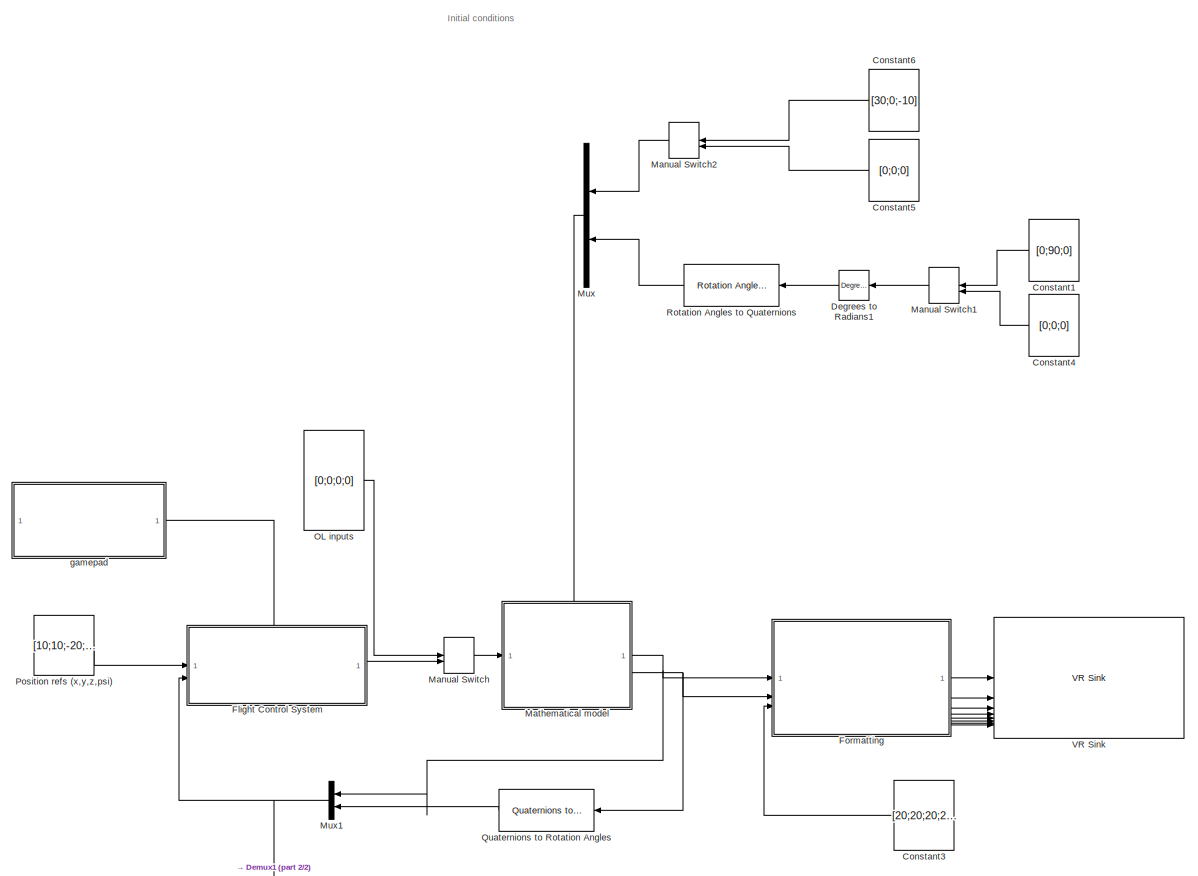
[diagram: root canvas - part 1/2, full width, middle band]
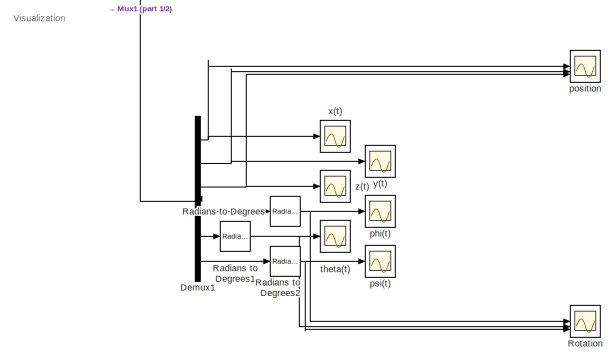
[diagram: root canvas - part 2/2, bottom center region]
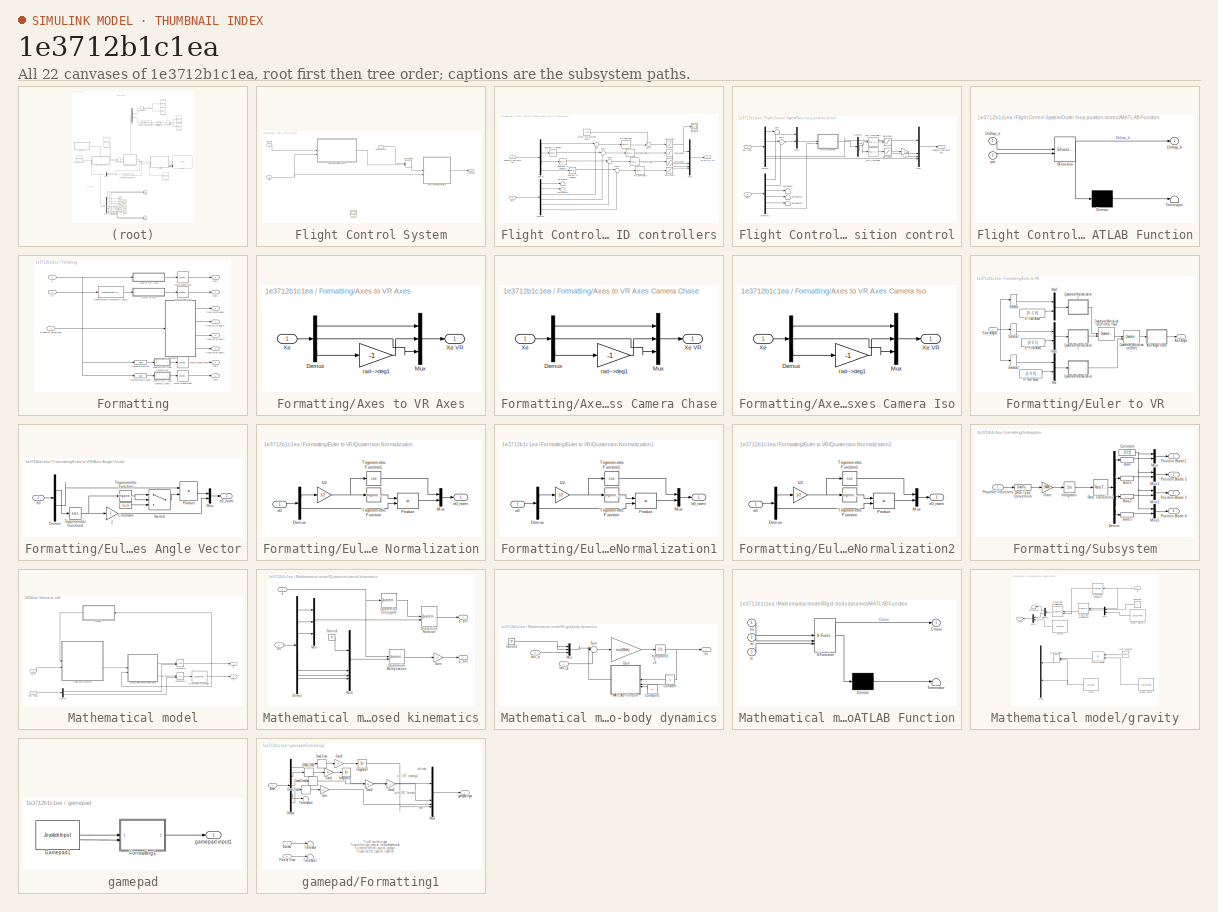
[diagram: thumbnail index - all 22 canvases of the model, root first then tree order]
MODEL slx_1e3712b1c1ea
KIND model
CONFIG AbsTol = auto
CONFIG EnableMultiTasking = on
CONFIG FixedStep = 0.005
CONFIG MaxStep = auto
CONFIG MinStep = auto
CONFIG RelTol = 1e-3
CONFIG SampleTimeConstraint = Unconstrained
CONFIG SolverName = ode3
CONFIG StartTime = 0
CONFIG StopTime = inf
BLOCK [Constant] Constant1
  NameLocation = top
  Value = [0;90;0]
  VectorParams1D = off
BLOCK [Constant] Constant3
  Value = [20;20;20;20]
  VectorParams1D = off
BLOCK [Constant] Constant4
  NameLocation = top
  Value = [0;0;0]
  VectorParams1D = off
BLOCK [Constant] Constant5
  Value = [0;0;0]
  VectorParams1D = off
BLOCK [Constant] Constant6
  Value = [30;0;-10]
  VectorParams1D = off
BLOCK [Reference] Degrees to Radians1  REF=simulink_extras/Transformations/Degrees to
Radians
  NameLocation = top
  SourceBlock = simulink_extras/Transformations/Degrees to\nRadians
  SourceType = DegreesToRadians
BLOCK [Demux] Demux1
  Outputs = 6
BLOCK [SubSystem] Flight Control System
  PortSchema = {"entries":[{"content":{"sides":[{"content":{"connectorIds":["In1","In2"]},"type":"ConnectorPlacement.EquallySpacedRectSide","uuid":"8ffec179-99fb-4b4c-a09d-a73fa0154dea"},{"content":{"connectorIds":["Out1"],"side":"RIGHT"},"type":"ConnectorPlacement.EquallySpacedRectSide","uuid":"b9ff487d-1da1-449a-81c9-f1838b0d3727"},{"content":{"connectorIds":["In3"],"side":"TOP"},"type":"ConnectorPlacement.Equ...<+251ch>
BLOCK [Outport] Flight Control System/Fz,mx,my,mz
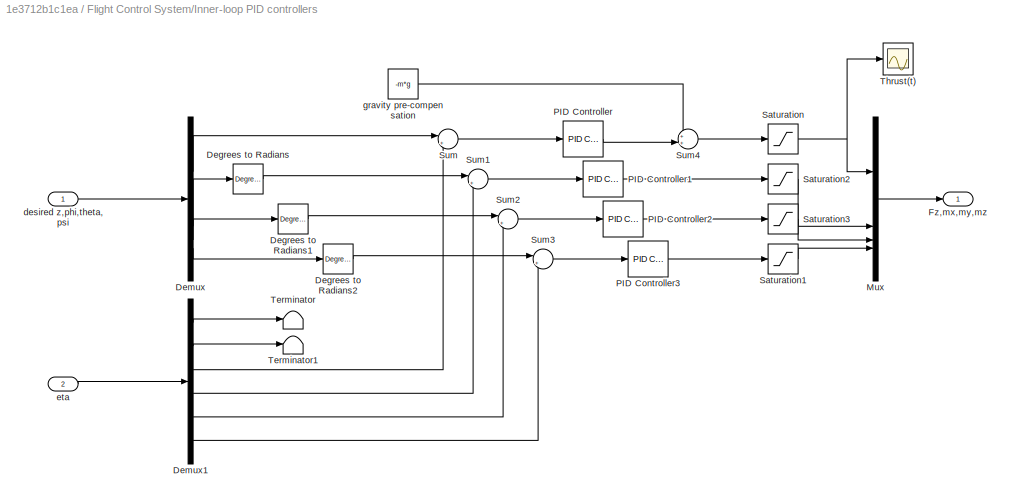
BLOCK [SubSystem] Flight Control System/Inner-loop PID controllers
BLOCK [Reference] Flight Control System/Inner-loop PID controllers/Degrees to Radians  REF=simulink_extras/Transformations/Degrees to
Radians
  SourceBlock = simulink_extras/Transformations/Degrees to\nRadians
  SourceType = DegreesToRadians
BLOCK [Reference] Flight Control System/Inner-loop PID controllers/Degrees to Radians1  REF=simulink_extras/Transformations/Degrees to
Radians
  SourceBlock = simulink_extras/Transformations/Degrees to\nRadians
  SourceType = DegreesToRadians
BLOCK [Reference] Flight Control System/Inner-loop PID controllers/Degrees to Radians2  REF=simulink_extras/Transformations/Degrees to
Radians
  SourceBlock = simulink_extras/Transformations/Degrees to\nRadians
  SourceType = DegreesToRadians
BLOCK [Demux] Flight Control System/Inner-loop PID controllers/Demux
BLOCK [Demux] Flight Control System/Inner-loop PID controllers/Demux1
  Outputs = 6
BLOCK [Outport] Flight Control System/Inner-loop PID controllers/Fz,mx,my,mz
BLOCK [Mux] Flight Control System/Inner-loop PID controllers/Mux
  DisplayOption = bar
BLOCK [Reference] Flight Control System/Inner-loop PID controllers/PID Controller  REF=slpidlib/PID Controller
  LibrarySourceBlock = simulink/Continuous/PID Controller
  SourceBlock = slpidlib/PID Controller
  SourceType = PID 1dof
BLOCK [Reference] Flight Control System/Inner-loop PID controllers/PID Controller1  REF=slpidlib/PID Controller
  LibrarySourceBlock = simulink/Continuous/PID Controller
  SourceBlock = slpidlib/PID Controller
  SourceType = PID 1dof
BLOCK [Reference] Flight Control System/Inner-loop PID controllers/PID Controller2  REF=slpidlib/PID Controller
  LibrarySourceBlock = simulink/Continuous/PID Controller
  SourceBlock = slpidlib/PID Controller
  SourceType = PID 1dof
BLOCK [Reference] Flight Control System/Inner-loop PID controllers/PID Controller3  REF=slpidlib/PID Controller
  LibrarySourceBlock = simulink/Continuous/PID Controller
  SourceBlock = slpidlib/PID Controller
  SourceType = PID 1dof
BLOCK [Saturate] Flight Control System/Inner-loop PID controllers/Saturation
  LowerLimit = -100
  UpperLimit = 100
BLOCK [Saturate] Flight Control System/Inner-loop PID controllers/Saturation1
  LowerLimit = -100
  UpperLimit = 100
BLOCK [Saturate] Flight Control System/Inner-loop PID controllers/Saturation2
  LowerLimit = -100
  UpperLimit = 100
BLOCK [Saturate] Flight Control System/Inner-loop PID controllers/Saturation3
  LowerLimit = -100
  UpperLimit = 100
BLOCK [Sum] Flight Control System/Inner-loop PID controllers/Sum
  Inputs = |+-
BLOCK [Sum] Flight Control System/Inner-loop PID controllers/Sum1
  Inputs = |+-
BLOCK [Sum] Flight Control System/Inner-loop PID controllers/Sum2
  Inputs = |+-
BLOCK [Sum] Flight Control System/Inner-loop PID controllers/Sum3
  Inputs = |+-
BLOCK [Sum] Flight Control System/Inner-loop PID controllers/Sum4
  Inputs = ++|
BLOCK [Terminator] Flight Control System/Inner-loop PID controllers/Terminator
BLOCK [Terminator] Flight Control System/Inner-loop PID controllers/Terminator1
BLOCK [Scope] Flight Control System/Inner-loop PID controllers/Thrust(t)
  Floating = off
  NumInputPorts = 1
  ScopeSpecificationString = Simulink.scopes.TimeScopeBlockCfg('CurrentConfiguration', extmgr.ConfigurationSet(extmgr.Configuration('Core','General UI',true),extmgr.Configuration('Core','Source UI',true),extmgr.Configuration('Sources','WiredSimulink',true,'DataLoggingVariableName','ScopeData6'),extmgr.Configuration('Visuals','Time Domain',true,'SerializedDisplays',{struct('MinYLimReal','-112.66583','MaxYLimReal','13.99248','Y...<+1456ch>
BLOCK [Inport] Flight Control System/Inner-loop PID controllers/desired z,phi,theta,psi
BLOCK [Inport] Flight Control System/Inner-loop PID controllers/eta
  Port = 2
BLOCK [Constant] Flight Control System/Inner-loop PID controllers/gravity pre-compensation
  Value = -m*g
BLOCK [ManualSwitch] Flight Control System/Manual Switch
BLOCK [SubSystem] Flight Control System/Outer loop position control
BLOCK [Demux] Flight Control System/Outer loop position control/Demux
BLOCK [Demux] Flight Control System/Outer loop position control/Demux1
  Outputs = 6
BLOCK [Demux] Flight Control System/Outer loop position control/Demux2
  Outputs = 2
BLOCK [Gain] Flight Control System/Outer loop position control/Gain
  Gain = -1
BLOCK [SubSystem] Flight Control System/Outer loop position control/MATLAB Function
  ErrorFcn = Stateflow.Translate.translate
  PermitHierarchicalResolution = ExplicitOnly
  SFBlockType = MATLAB Function
  TreatAsAtomicUnit = on
BLOCK [Demux] Flight Control System/Outer loop position control/MATLAB Function/ Demux 
  Outputs = 1
BLOCK [S-Function] Flight Control System/Outer loop position control/MATLAB Function/ SFunction 
  EnableBusSupport = on
  FunctionName = sf_sfun
  PortCounts = [2 2]
  SFcnIsStateOwnerBlock = off
  SFunctionDeploymentMode = off
  Tag = Stateflow S-Function 1
BLOCK [Terminator] Flight Control System/Outer loop position control/MATLAB Function/ Terminator 
BLOCK [Outport] Flight Control System/Outer loop position control/MATLAB Function/Deltap_b
BLOCK [Inport] Flight Control System/Outer loop position control/MATLAB Function/Deltap_e
BLOCK [Inport] Flight Control System/Outer loop position control/MATLAB Function/psi
  Port = 2
BLOCK [Mux] Flight Control System/Outer loop position control/Mux
  DisplayOption = bar
BLOCK [Mux] Flight Control System/Outer loop position control/Mux1
  DisplayOption = bar
  Inputs = 2
BLOCK [Reference] Flight Control System/Outer loop position control/PID Controller  REF=slpidlib/PID Controller
  LibrarySourceBlock = simulink/Continuous/PID Controller
  SourceBlock = slpidlib/PID Controller
  SourceType = PID 1dof
BLOCK [Reference] Flight Control System/Outer loop position control/PID Controller2  REF=slpidlib/PID Controller
  LibrarySourceBlock = simulink/Continuous/PID Controller
  SourceBlock = slpidlib/PID Controller
  SourceType = PID 1dof
BLOCK [Inport] Flight Control System/Outer loop position control/Pos. refs
BLOCK [Saturate] Flight Control System/Outer loop position control/Saturation
  LowerLimit = -5
  UpperLimit = 5
BLOCK [Saturate] Flight Control System/Outer loop position control/Saturation1
  LowerLimit = -5
  UpperLimit = 5
BLOCK [Sum] Flight Control System/Outer loop position control/Sum
  Inputs = |+-
BLOCK [Sum] Flight Control System/Outer loop position control/Sum1
  Inputs = |+-
BLOCK [Terminator] Flight Control System/Outer loop position control/Terminator
BLOCK [Terminator] Flight Control System/Outer loop position control/Terminator1
BLOCK [Terminator] Flight Control System/Outer loop position control/Terminator2
BLOCK [Outport] Flight Control System/Outer loop position control/desired z,phi,theta,psi
BLOCK [Inport] Flight Control System/Outer loop position control/eta
  Port = 2
BLOCK [Inport] Flight Control System/Pos. refs
BLOCK [Inport] Flight Control System/eta
  Port = 2
BLOCK [Inport] Flight Control System/gamepad input
  Port = 3
BLOCK [Scope] Flight Control System/m_y(t)
  Floating = off
  NumInputPorts = 1
  ScopeSpecificationString = Simulink.scopes.TimeScopeBlockCfg('CurrentConfiguration', extmgr.ConfigurationSet(extmgr.Configuration('Core','General UI',true),extmgr.Configuration('Core','Source UI',true),extmgr.Configuration('Sources','WiredSimulink',true,'DataLoggingVariableName','ScopeData3'),extmgr.Configuration('Visuals','Time Domain',true,'SerializedDisplays',{struct('MinYLimReal','-1.00000','MaxYLimReal','1.00000','YLab...<+1433ch>
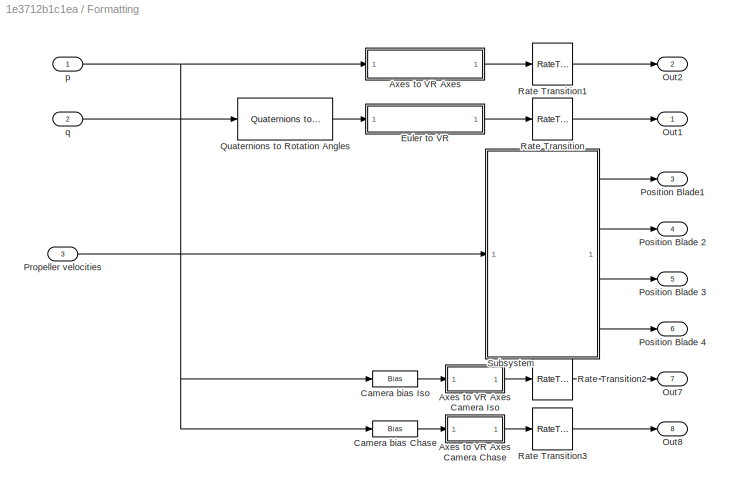
BLOCK [SubSystem] Formatting
BLOCK [SubSystem] Formatting/Axes to VR Axes
BLOCK [SubSystem] Formatting/Axes to VR Axes Camera Chase
BLOCK [Demux] Formatting/Axes to VR Axes Camera Chase/Demux
  DisplayOption = none
  Outputs = 3
BLOCK [Mux] Formatting/Axes to VR Axes Camera Chase/Mux
  DisplayOption = bar
  Inputs = 3
BLOCK [Inport] Formatting/Axes to VR Axes Camera Chase/Xe
BLOCK [Outport] Formatting/Axes to VR Axes Camera Chase/Xe VR
  VectorParamsAs1DForOutWhenUnconnected = off
BLOCK [Gain] Formatting/Axes to VR Axes Camera Chase/rad-->deg1
  Gain = -1
  NameLocation = top
  OutDataTypeStr = Inherit: Same as input
  ParamDataTypeStr = Inherit: Same as input
  SaturateOnIntegerOverflow = on
BLOCK [SubSystem] Formatting/Axes to VR Axes Camera Iso
BLOCK [Demux] Formatting/Axes to VR Axes Camera Iso/Demux
  DisplayOption = none
  Outputs = 3
BLOCK [Mux] Formatting/Axes to VR Axes Camera Iso/Mux
  DisplayOption = bar
  Inputs = 3
BLOCK [Inport] Formatting/Axes to VR Axes Camera Iso/Xe
BLOCK [Outport] Formatting/Axes to VR Axes Camera Iso/Xe VR
  VectorParamsAs1DForOutWhenUnconnected = off
BLOCK [Gain] Formatting/Axes to VR Axes Camera Iso/rad-->deg1
  Gain = -1
  NameLocation = top
  OutDataTypeStr = Inherit: Same as input
  ParamDataTypeStr = Inherit: Same as input
  SaturateOnIntegerOverflow = on
BLOCK [Demux] Formatting/Axes to VR Axes/Demux
  DisplayOption = none
  Outputs = 3
BLOCK [Mux] Formatting/Axes to VR Axes/Mux
  DisplayOption = bar
  Inputs = 3
BLOCK [Inport] Formatting/Axes to VR Axes/Xe
BLOCK [Outport] Formatting/Axes to VR Axes/Xe VR
  VectorParamsAs1DForOutWhenUnconnected = off
BLOCK [Gain] Formatting/Axes to VR Axes/rad-->deg1
  Gain = -1
  NameLocation = top
  OutDataTypeStr = Inherit: Same as input
  ParamDataTypeStr = Inherit: Same as input
  SaturateOnIntegerOverflow = on
BLOCK [Bias] Formatting/Camera bias Chase
  Bias = [-4 0 -.9558]'
  SaturateOnIntegerOverflow = off
BLOCK [Bias] Formatting/Camera bias Iso
  Bias = [0.9009 .99 -.6247]'
  SaturateOnIntegerOverflow = off
BLOCK [SubSystem] Formatting/Euler to VR
BLOCK [Outport] Formatting/Euler to VR/Axis Angle
  VectorParamsAs1DForOutWhenUnconnected = off
BLOCK [SubSystem] Formatting/Euler to VR/Axis Angle Vector
BLOCK [Gain] Formatting/Euler to VR/Axis Angle Vector/2
  Gain = 2
  OutDataTypeStr = Inherit: Same as input
  ParamDataTypeStr = Inherit: Same as input
  SaturateOnIntegerOverflow = on
BLOCK [Constant] Formatting/Euler to VR/Axis Angle Vector/Constant
  Value = 1e-6
BLOCK [Demux] Formatting/Euler to VR/Axis Angle Vector/Demux
  DisplayOption = none
  Outputs = [1 3 ]
BLOCK [Mux] Formatting/Euler to VR/Axis Angle Vector/Mux
  DisplayOption = bar
  Inputs = 2
BLOCK [Product] Formatting/Euler to VR/Axis Angle Vector/Product
  InputSameDT = on
  Inputs = */
  OutDataTypeStr = Inherit: Same as first input
  SaturateOnIntegerOverflow = on
BLOCK [Switch] Formatting/Euler to VR/Axis Angle Vector/Switch
  Criteria = u2 ~= 0
  InputSameDT = off
  SaturateOnIntegerOverflow = off
BLOCK [Trigonometry] Formatting/Euler to VR/Axis Angle Vector/Trigonometric Function
BLOCK [Trigonometry] Formatting/Euler to VR/Axis Angle Vector/Trigonometric Function2
  Operator = acos
BLOCK [Inport] Formatting/Euler to VR/Axis Angle Vector/e0
BLOCK [Outport] Formatting/Euler to VR/Axis Angle Vector/e0_norm
  VectorParamsAs1DForOutWhenUnconnected = off
BLOCK [Inport] Formatting/Euler to VR/Euler Angles
BLOCK [Mux] Formatting/Euler to VR/Mux
  DisplayOption = bar
  Inputs = 2
BLOCK [Mux] Formatting/Euler to VR/Mux1
  DisplayOption = bar
  Inputs = 2
BLOCK [Mux] Formatting/Euler to VR/Mux2
  DisplayOption = bar
  Inputs = 2
BLOCK [Reference] Formatting/Euler to VR/Quaternion Multiplication (Pitch & Yaw)  REF=aerolibutil/Quaternion
Multiplication
  SourceBlock = aerolibutil/Quaternion\nMultiplication
  SourceType = Quaternion Multiplication
BLOCK [Reference] Formatting/Euler to VR/Quaternion Multiplication (Roll)  REF=aerolibutil/Quaternion
Multiplication
  SourceBlock = aerolibutil/Quaternion\nMultiplication
  SourceType = Quaternion Multiplication
BLOCK [SubSystem] Formatting/Euler to VR/Quaternion Normalization
BLOCK [Gain] Formatting/Euler to VR/Quaternion Normalization/1//2
  Gain = 1/2
  OutDataTypeStr = Inherit: Same as input
  ParamDataTypeStr = Inherit: Same as input
  SaturateOnIntegerOverflow = on
BLOCK [Demux] Formatting/Euler to VR/Quaternion Normalization/Demux
  DisplayOption = none
  Outputs = [1 3]
BLOCK [Mux] Formatting/Euler to VR/Quaternion Normalization/Mux
  DisplayOption = bar
  Inputs = 2
BLOCK [Product] Formatting/Euler to VR/Quaternion Normalization/Product
  InputSameDT = on
  OutDataTypeStr = Inherit: Same as first input
  SaturateOnIntegerOverflow = on
BLOCK [Trigonometry] Formatting/Euler to VR/Quaternion Normalization/Trigonometric Function
BLOCK [Trigonometry] Formatting/Euler to VR/Quaternion Normalization/Trigonometric Function1
  Operator = cos
BLOCK [Inport] Formatting/Euler to VR/Quaternion Normalization/e0
BLOCK [Outport] Formatting/Euler to VR/Quaternion Normalization/e0_norm
  VectorParamsAs1DForOutWhenUnconnected = off
BLOCK [SubSystem] Formatting/Euler to VR/Quaternion Normalization1
BLOCK [Gain] Formatting/Euler to VR/Quaternion Normalization1/1//2
  Gain = 1/2
  OutDataTypeStr = Inherit: Same as input
  ParamDataTypeStr = Inherit: Same as input
  SaturateOnIntegerOverflow = on
BLOCK [Demux] Formatting/Euler to VR/Quaternion Normalization1/Demux
  DisplayOption = none
  Outputs = [1 3]
BLOCK [Mux] Formatting/Euler to VR/Quaternion Normalization1/Mux
  DisplayOption = bar
  Inputs = 2
BLOCK [Product] Formatting/Euler to VR/Quaternion Normalization1/Product
  InputSameDT = on
  OutDataTypeStr = Inherit: Same as first input
  SaturateOnIntegerOverflow = on
BLOCK [Trigonometry] Formatting/Euler to VR/Quaternion Normalization1/Trigonometric Function
BLOCK [Trigonometry] Formatting/Euler to VR/Quaternion Normalization1/Trigonometric Function1
  Operator = cos
BLOCK [Inport] Formatting/Euler to VR/Quaternion Normalization1/e0
BLOCK [Outport] Formatting/Euler to VR/Quaternion Normalization1/e0_norm
  VectorParamsAs1DForOutWhenUnconnected = off
BLOCK [SubSystem] Formatting/Euler to VR/Quaternion Normalization2
BLOCK [Gain] Formatting/Euler to VR/Quaternion Normalization2/1//2
  Gain = 1/2
  OutDataTypeStr = Inherit: Same as input
  ParamDataTypeStr = Inherit: Same as input
  SaturateOnIntegerOverflow = on
BLOCK [Demux] Formatting/Euler to VR/Quaternion Normalization2/Demux
  DisplayOption = none
  Outputs = [1 3]
BLOCK [Mux] Formatting/Euler to VR/Quaternion Normalization2/Mux
  DisplayOption = bar
  Inputs = 2
BLOCK [Product] Formatting/Euler to VR/Quaternion Normalization2/Product
  InputSameDT = on
  OutDataTypeStr = Inherit: Same as first input
  SaturateOnIntegerOverflow = on
BLOCK [Trigonometry] Formatting/Euler to VR/Quaternion Normalization2/Trigonometric Function
BLOCK [Trigonometry] Formatting/Euler to VR/Quaternion Normalization2/Trigonometric Function1
  Operator = cos
BLOCK [Inport] Formatting/Euler to VR/Quaternion Normalization2/e0
BLOCK [Outport] Formatting/Euler to VR/Quaternion Normalization2/e0_norm
  VectorParamsAs1DForOutWhenUnconnected = off
BLOCK [Selector] Formatting/Euler to VR/Selector
  IndexOptions = Index vector (dialog)
  Indices = [3]
  InputPortWidth = 3
  OutputSizes = 1
BLOCK [Selector] Formatting/Euler to VR/Selector1
  IndexOptions = Index vector (dialog)
  Indices = [2]
  InputPortWidth = 3
  OutputSizes = 1
BLOCK [Selector] Formatting/Euler to VR/Selector2
  IndexOptions = Index vector (dialog)
  Indices = [1]
  InputPortWidth = 3
  OutputSizes = 1
BLOCK [Constant] Formatting/Euler to VR/Vr Pitch Axes
  NameLocation = top
  Value = [0 0 1]
BLOCK [Constant] Formatting/Euler to VR/Vr Roll Axes
  NameLocation = top
  Value = [1 0 0]
BLOCK [Constant] Formatting/Euler to VR/Vr Yaw Axes
  Value = [0 -1 0]
BLOCK [Outport] Formatting/Out1
BLOCK [Outport] Formatting/Out2
  Port = 2
BLOCK [Outport] Formatting/Out7
  Port = 7
BLOCK [Outport] Formatting/Out8
  Port = 8
BLOCK [Outport] Formatting/Position Blade 2
  Port = 4
BLOCK [Outport] Formatting/Position Blade 3
  Port = 5
BLOCK [Outport] Formatting/Position Blade 4
  Port = 6
BLOCK [Outport] Formatting/Position Blade1
  Port = 3
BLOCK [Inport] Formatting/Propeller velocities
  Port = 3
BLOCK [Reference] Formatting/Quaternions to Rotation Angles  REF=sharedtransform/Quaternions to Rotation Angles
  AttributesFormatString = Rotation Order: %<rotationOrder>
  LibrarySourceBlock = aerolibtransform2/Quaternions to Rotation Angles
  SourceBlock = sharedtransform/Quaternions to Rotation Angles
  SourceType = Quat2Ang
BLOCK [RateTransition] Formatting/Rate Transition
BLOCK [RateTransition] Formatting/Rate Transition1
BLOCK [RateTransition] Formatting/Rate Transition2
BLOCK [RateTransition] Formatting/Rate Transition3
BLOCK [SubSystem] Formatting/Subsystem
BLOCK [Bias] Formatting/Subsystem/Bias
  Bias = .1
  SaturateOnIntegerOverflow = off
BLOCK [Bias] Formatting/Subsystem/Bias1
  Bias = -.3
  SaturateOnIntegerOverflow = off
BLOCK [Bias] Formatting/Subsystem/Bias2
  Bias = .5
  SaturateOnIntegerOverflow = off
BLOCK [Bias] Formatting/Subsystem/Bias3
  Bias = .7
  SaturateOnIntegerOverflow = off
BLOCK [Constant] Formatting/Subsystem/Constant
  Value = [0 1 0]
BLOCK [DataTypeConversion] Formatting/Subsystem/Data Type Conversion
  OutDataTypeStr = double
  RndMeth = Floor
  SaturateOnIntegerOverflow = off
BLOCK [Demux] Formatting/Subsystem/Demux
BLOCK [Gain] Formatting/Subsystem/Gain
  Gain = 1.38408
BLOCK [Integrator] Formatting/Subsystem/Integrator
  InitialCondition = [.1 ; .2 ;-.3 ;-.4]
  WrapState = on
  WrappedStateLowerValue = -2*pi
  WrappedStateUpperValue = 2*pi
BLOCK [Mux] Formatting/Subsystem/Mux
  DisplayOption = bar
  Inputs = 2
BLOCK [Mux] Formatting/Subsystem/Mux1
  DisplayOption = bar
  Inputs = 2
BLOCK [Mux] Formatting/Subsystem/Mux2
  DisplayOption = bar
  Inputs = 2
BLOCK [Mux] Formatting/Subsystem/Mux3
  DisplayOption = bar
  Inputs = 2
BLOCK [Outport] Formatting/Subsystem/Position Blade 2
  Port = 2
  VectorParamsAs1DForOutWhenUnconnected = off
BLOCK [Outport] Formatting/Subsystem/Position Blade 3
  Port = 3
  VectorParamsAs1DForOutWhenUnconnected = off
BLOCK [Outport] Formatting/Subsystem/Position Blade 4
  Port = 4
  VectorParamsAs1DForOutWhenUnconnected = off
BLOCK [Outport] Formatting/Subsystem/Position Blade1
  VectorParamsAs1DForOutWhenUnconnected = off
BLOCK [Inport] Formatting/Subsystem/Propeller velocities
BLOCK [RateTransition] Formatting/Subsystem/Rate Transition2
BLOCK [Inport] Formatting/p
BLOCK [Inport] Formatting/q
  Port = 2
BLOCK [ManualSwitch] Manual Switch
  CurrentSetting = 0
BLOCK [ManualSwitch] Manual Switch1
  CurrentSetting = 0
  NameLocation = top
BLOCK [ManualSwitch] Manual Switch2
  CurrentSetting = 0
BLOCK [SubSystem] Mathematical model
  PortSchema = {"entries":[{"content":{"sides":[{"content":{"connectorIds":["In1"]},"type":"ConnectorPlacement.EquallySpacedRectSide","uuid":"ec20a421-1623-4e70-8139-b8a1059377b4"},{"content":{"connectorIds":["Out1","Out2"],"side":"RIGHT"},"type":"ConnectorPlacement.EquallySpacedRectSide","uuid":"36d93457-e9eb-484d-a9d5-c13c594c981e"},{"content":{"connectorIds":["In2"],"side":"TOP"},"type":"ConnectorPlacement.Eq...<+252ch>
BLOCK [Demux] Mathematical model/Demux
  Outputs = [3,4]
BLOCK [Inport] Mathematical model/Init. cond.
  Port = 2
BLOCK [Integrator] Mathematical model/Integrator
  InitialCondition = [0;0;-10]
  InitialConditionSource = external
BLOCK [Integrator] Mathematical model/Integrator2
  InitialCondition = [0;0;-10;0;pi/2;0]
  InitialConditionSource = external
BLOCK [Reference] Mathematical model/Quaternion Normalize  REF=sharedutil/Quaternion
Normalize
  LibrarySourceBlock = aerolibutil/Quaternion\nNormalize
  SourceBlock = sharedutil/Quaternion\nNormalize
  SourceType = Quaternion Normalize
BLOCK [SubSystem] Mathematical model/Quaternion-based kinematics
  NameLocation = top
BLOCK [Demux] Mathematical model/Quaternion-based kinematics/Demux
  Outputs = 6
BLOCK [Gain] Mathematical model/Quaternion-based kinematics/Gain
  Gain = 1/2
BLOCK [Ground] Mathematical model/Quaternion-based kinematics/Ground
BLOCK [Mux] Mathematical model/Quaternion-based kinematics/Mux
  DisplayOption = bar
  Inputs = 3
BLOCK [Mux] Mathematical model/Quaternion-based kinematics/Mux1
  DisplayOption = bar
BLOCK [Reference] Mathematical model/Quaternion-based kinematics/Quaternion Conjugate  REF=aerolibutil/Quaternion
Conjugate
  SourceBlock = aerolibutil/Quaternion\nConjugate
  SourceType = Quaternion Conjugate
BLOCK [Reference] Mathematical model/Quaternion-based kinematics/Quaternion Multiplication  REF=aerolibutil/Quaternion
Multiplication
  SourceBlock = aerolibutil/Quaternion\nMultiplication
  SourceType = Quaternion Multiplication
BLOCK [Reference] Mathematical model/Quaternion-based kinematics/Quaternion Rotation  REF=aerolibutil/Quaternion
Rotation
  SourceBlock = aerolibutil/Quaternion\nRotation
  SourceType = Quaternion Rotation
BLOCK [Inport] Mathematical model/Quaternion-based kinematics/nu
BLOCK [Outport] Mathematical model/Quaternion-based kinematics/p_dot
BLOCK [Inport] Mathematical model/Quaternion-based kinematics/q
  Port = 2
BLOCK [Outport] Mathematical model/Quaternion-based kinematics/q_dot
  Port = 2
BLOCK [SubSystem] Mathematical model/Rigid-body dynamics
BLOCK [Constant] Mathematical model/Rigid-body dynamics/Constant
  Value = m
BLOCK [Constant] Mathematical model/Rigid-body dynamics/Constant1
  Value = Ic
  VectorParams1D = off
BLOCK [Gain] Mathematical model/Rigid-body dynamics/Gain
  Gain = inv(Mrb)
  Multiplication = Matrix(K*u) (u vector)
BLOCK [Ground] Mathematical model/Rigid-body dynamics/Ground
BLOCK [Integrator] Mathematical model/Rigid-body dynamics/Integrator1
  InitialCondition = [0;0;0;0;0;0]
BLOCK [SubSystem] Mathematical model/Rigid-body dynamics/MATLAB Function
  ErrorFcn = Stateflow.Translate.translate
  PermitHierarchicalResolution = ExplicitOnly
  SFBlockType = MATLAB Function
  TreatAsAtomicUnit = on
BLOCK [Demux] Mathematical model/Rigid-body dynamics/MATLAB Function/ Demux 
  Outputs = 1
BLOCK [S-Function] Mathematical model/Rigid-body dynamics/MATLAB Function/ SFunction 
  EnableBusSupport = on
  FunctionName = sf_sfun
  PortCounts = [3 2]
  SFcnIsStateOwnerBlock = off
  SFunctionDeploymentMode = off
  Tag = Stateflow S-Function 2
BLOCK [Terminator] Mathematical model/Rigid-body dynamics/MATLAB Function/ Terminator 
BLOCK [Outport] Mathematical model/Rigid-body dynamics/MATLAB Function/Cnunu
BLOCK [Inport] Mathematical model/Rigid-body dynamics/MATLAB Function/Ic
  Port = 3
BLOCK [Inport] Mathematical model/Rigid-body dynamics/MATLAB Function/m
  Port = 2
BLOCK [Inport] Mathematical model/Rigid-body dynamics/MATLAB Function/nu
BLOCK [Mux] Mathematical model/Rigid-body dynamics/Mux
  DisplayOption = bar
  Inputs = 3
BLOCK [Sum] Mathematical model/Rigid-body dynamics/Sum
  Inputs = |+-+
BLOCK [Outport] Mathematical model/Rigid-body dynamics/nu
BLOCK [Inport] Mathematical model/Rigid-body dynamics/tau_g
BLOCK [Inport] Mathematical model/Rigid-body dynamics/tau_p
  Port = 2
BLOCK [SubSystem] Mathematical model/gravity
BLOCK [Constant] Mathematical model/gravity/Constant
  NameLocation = top
  Value = 0
BLOCK [Demux] Mathematical model/gravity/Demux
  NameLocation = top
  Outputs = [1,3]
BLOCK [ManualSwitch] Mathematical model/gravity/Manual Switch
  Commented = on
BLOCK [Math] Mathematical model/gravity/Math Function
  Commented = on
  Operator = transpose
BLOCK [Product] Mathematical model/gravity/Matrix Multiply
  Commented = on
  Multiplication = Matrix(*)
BLOCK [Mux] Mathematical model/gravity/Mux
  DisplayOption = bar
  Inputs = 2
  NameLocation = top
BLOCK [Mux] Mathematical model/gravity/Mux1
  DisplayOption = bar
  Inputs = 2
  NameLocation = top
BLOCK [Mux] Mathematical model/gravity/Mux2
  Commented = on
  DisplayOption = bar
  Inputs = 2
  NameLocation = top
BLOCK [Reference] Mathematical model/gravity/Quaternion Conjugate  REF=aerolibutil/Quaternion
Conjugate
  NameLocation = top
  SourceBlock = aerolibutil/Quaternion\nConjugate
  SourceType = Quaternion Conjugate
BLOCK [Reference] Mathematical model/gravity/Quaternion Multiplication  REF=aerolibutil/Quaternion
Multiplication
  NameLocation = top
  SourceBlock = aerolibutil/Quaternion\nMultiplication
  SourceType = Quaternion Multiplication
BLOCK [Reference] Mathematical model/gravity/Quaternion Multiplication1  REF=aerolibutil/Quaternion
Multiplication
  NameLocation = top
  SourceBlock = aerolibutil/Quaternion\nMultiplication
  SourceType = Quaternion Multiplication
BLOCK [Terminator] Mathematical model/gravity/Terminator
  NameLocation = top
BLOCK [Constant] Mathematical model/gravity/gravity vector
  Commented = on
  Value = [0;0;m*g]
  VectorParams1D = off
BLOCK [Constant] Mathematical model/gravity/gravity vector1
  Value = [0;0;m*g]
  VectorParams1D = off
BLOCK [Inport] Mathematical model/gravity/q
BLOCK [Outport] Mathematical model/gravity/tau_g
BLOCK [Constant] Mathematical model/gravity/zeros
  Commented = on
  NameLocation = top
  Value = [0;0;0]
  VectorParams1D = off
BLOCK [Constant] Mathematical model/gravity/zeros1
  NameLocation = top
  Value = [0;0;0]
  VectorParams1D = off
BLOCK [Outport] Mathematical model/p
BLOCK [Outport] Mathematical model/q
  Port = 2
BLOCK [Inport] Mathematical model/tau_p
BLOCK [Mux] Mux
  DisplayOption = bar
  Inputs = 2
  NameLocation = top
BLOCK [Mux] Mux1
  DisplayOption = bar
  Inputs = 2
  NameLocation = top
BLOCK [Constant] OL inputs
  Value = [0;0;0;0]
  VectorParams1D = off
BLOCK [Constant] Position refs (x,y,z,psi)
  Value = [10;10;-20;45]
  VectorParams1D = off
BLOCK [Reference] Quaternions to Rotation Angles  REF=sharedtransform/Quaternions to Rotation Angles
  AttributesFormatString = Rotation Order: %<rotationOrder>
  LibrarySourceBlock = aerolibtransform2/Quaternions to Rotation Angles
  NameLocation = top
  SourceBlock = sharedtransform/Quaternions to Rotation Angles
  SourceType = Quat2Ang
BLOCK [Reference] Radians to Degrees  REF=simulink_extras/Transformations/Radians
to Degrees
  SourceBlock = simulink_extras/Transformations/Radians\nto Degrees
  SourceType = RadiansToDegrees
BLOCK [Reference] Radians to Degrees1  REF=simulink_extras/Transformations/Radians
to Degrees
  SourceBlock = simulink_extras/Transformations/Radians\nto Degrees
  SourceType = RadiansToDegrees
BLOCK [Reference] Radians to Degrees2  REF=simulink_extras/Transformations/Radians
to Degrees
  SourceBlock = simulink_extras/Transformations/Radians\nto Degrees
  SourceType = RadiansToDegrees
BLOCK [Scope] Rotation
  Floating = off
  NumInputPorts = 3
  ScopeSpecificationString = Simulink.scopes.TimeScopeBlockCfg('CurrentConfiguration', extmgr.ConfigurationSet(extmgr.Configuration('Core','General UI',true),extmgr.Configuration('Core','Source UI',true),extmgr.Configuration('Sources','WiredSimulink',true,'DataLoggingVariableName','ScopeData8'),extmgr.Configuration('Visuals','Time Domain',true,'SerializedDisplays',{struct('MinYLimReal','-51.00331','MaxYLimReal','32.79948','YL...<+1479ch>
BLOCK [Reference] Rotation Angles to Quaternions  REF=sharedtransform/Rotation Angles to Quaternions
  AttributesFormatString = Rotation Order: %<rotationOrder>
  LibrarySourceBlock = aerolibtransform2/Rotation Angles to Quaternions
  NameLocation = top
  SourceBlock = sharedtransform/Rotation Angles to Quaternions
  SourceType = Ang2Quat
BLOCK [Reference] VR Sink  REF=vrlib/VR Sink
  InstantiateOnLoad = on
  SourceBlock = vrlib/VR Sink
  SourceType = Virtual Reality Sink
BLOCK [SubSystem] gamepad
BLOCK [SubSystem] gamepad/Formatting1
BLOCK [Inport] gamepad/Formatting1/Axes
BLOCK [Inport] gamepad/Formatting1/Buttons
  Port = 2
BLOCK [DeadZone] gamepad/Formatting1/Dead Zone
  LowerValue = -0.2
  UpperValue = 0.2
BLOCK [DeadZone] gamepad/Formatting1/Dead Zone1
  LowerValue = -0.2
  UpperValue = 0.2
BLOCK [DeadZone] gamepad/Formatting1/Dead Zone2
  LowerValue = -0.2
  UpperValue = 0.2
BLOCK [DeadZone] gamepad/Formatting1/Dead Zone3
  LowerValue = -0.2
  UpperValue = 0.2
BLOCK [Demux] gamepad/Formatting1/Demux
  Outputs = 5
BLOCK [Gain] gamepad/Formatting1/Gain
  Gain = 10
BLOCK [Gain] gamepad/Formatting1/Gain1
  Gain = 10
BLOCK [Gain] gamepad/Formatting1/Gain2
  Gain = 10
BLOCK [Gain] gamepad/Formatting1/Gain3
  Gain = 10
BLOCK [Gain] gamepad/Formatting1/Gain4
  Gain = -1
BLOCK [Integrator] gamepad/Formatting1/Integrator1
  InitialCondition = -17
BLOCK [Integrator] gamepad/Formatting1/Integrator2
  InitialCondition = -45
BLOCK [Mux] gamepad/Formatting1/Mux3
  DisplayOption = bar
BLOCK [Inport] gamepad/Formatting1/Point of View
  Port = 3
BLOCK [Terminator] gamepad/Formatting1/Terminator
BLOCK [Terminator] gamepad/Formatting1/Terminator1
BLOCK [Terminator] gamepad/Formatting1/Terminator4
BLOCK [Outport] gamepad/Formatting1/gamepad input
BLOCK [Reference] gamepad/Gamepad1  REF=vrlib/Joystick Input
  SourceBlock = vrlib/Joystick Input
  SourceType = Joystick Input
BLOCK [Outport] gamepad/gamepad input1
BLOCK [Scope] phi(t)
  Floating = off
  NameLocation = top
  NumInputPorts = 1
  ScopeSpecificationString = Simulink.scopes.TimeScopeBlockCfg('CurrentConfiguration', extmgr.ConfigurationSet(extmgr.Configuration('Core','General UI',true),extmgr.Configuration('Core','Source UI',true),extmgr.Configuration('Sources','WiredSimulink',true,'DataLoggingVariableName','ScopeData1'),extmgr.Configuration('Visuals','Time Domain',true,'SerializedDisplays',{struct('MinYLimReal','-1.00000','MaxYLimReal','1.00000','YLab...<+1406ch>
BLOCK [Scope] position
  Floating = off
  NumInputPorts = 3
  ScopeSpecificationString = Simulink.scopes.TimeScopeBlockCfg('CurrentConfiguration', extmgr.ConfigurationSet(extmgr.Configuration('Core','General UI',true),extmgr.Configuration('Core','Source UI',true),extmgr.Configuration('Sources','WiredSimulink',true,'DataLoggingVariableName','ScopeData7'),extmgr.Configuration('Visuals','Time Domain',true,'SerializedDisplays',{struct('MinYLimReal','-25.94777','MaxYLimReal','14.70897','YL...<+1562ch>
BLOCK [Scope] psi(t)
  Floating = off
  NameLocation = top
  NumInputPorts = 1
  ScopeSpecificationString = Simulink.scopes.TimeScopeBlockCfg('CurrentConfiguration', extmgr.ConfigurationSet(extmgr.Configuration('Core','General UI',true),extmgr.Configuration('Core','Source UI',true),extmgr.Configuration('Sources','WiredSimulink',true,'DataLoggingVariableName','ScopeData2'),extmgr.Configuration('Visuals','Time Domain',true,'SerializedDisplays',{struct('MinYLimReal','-1.00000','MaxYLimReal','1.00000','YLab...<+1407ch>
BLOCK [Scope] theta(t)
  Floating = off
  NameLocation = top
  NumInputPorts = 1
  ScopeSpecificationString = Simulink.scopes.TimeScopeBlockCfg('CurrentConfiguration', extmgr.ConfigurationSet(extmgr.Configuration('Core','General UI',true),extmgr.Configuration('Core','Source UI',true),extmgr.Configuration('Sources','WiredSimulink',true,'DataLoggingVariableName','ScopeData3'),extmgr.Configuration('Visuals','Time Domain',true,'SerializedDisplays',{struct('MinYLimReal','-1.47578','MaxYLimReal','6.83974','YLab...<+1407ch>
BLOCK [Scope] x(t)
  Floating = off
  NameLocation = top
  NumInputPorts = 1
  ScopeSpecificationString = Simulink.scopes.TimeScopeBlockCfg('CurrentConfiguration', extmgr.ConfigurationSet(extmgr.Configuration('Core','General UI',true),extmgr.Configuration('Core','Source UI',true),extmgr.Configuration('Sources','WiredSimulink',true,'DataLoggingVariableName','ScopeData4'),extmgr.Configuration('Visuals','Time Domain',true,'SerializedDisplays',{struct('MinYLimReal','64.13969','MaxYLimReal','75.78646','YLa...<+1392ch>
BLOCK [Scope] y(t)
  Floating = off
  NameLocation = top
  NumInputPorts = 1
  ScopeSpecificationString = Simulink.scopes.TimeScopeBlockCfg('CurrentConfiguration', extmgr.ConfigurationSet(extmgr.Configuration('Core','General UI',true),extmgr.Configuration('Core','Source UI',true),extmgr.Configuration('Sources','WiredSimulink',true,'DataLoggingVariableName','ScopeData5'),extmgr.Configuration('Visuals','Time Domain',true,'SerializedDisplays',{struct('MinYLimReal','66.40869','MaxYLimReal','67.13196','YLa...<+1394ch>
BLOCK [Scope] z(t)
  Floating = off
  NameLocation = top
  NumInputPorts = 1
  ScopeSpecificationString = Simulink.scopes.TimeScopeBlockCfg('CurrentConfiguration', extmgr.ConfigurationSet(extmgr.Configuration('Core','General UI',true),extmgr.Configuration('Core','Source UI',true),extmgr.Configuration('Sources','WiredSimulink',true,'DataLoggingVariableName','ScopeData6'),extmgr.Configuration('Visuals','Time Domain',true,'SerializedDisplays',{struct('MinYLimReal','-18.96666','MaxYLimReal','-16.86198','Y...<+1394ch>
ANNOTATION (root): Initial conditions
ANNOTATION (root): Visualization
ANNOTATION Mathematical model/Rigid-body dynamics: $\nu$
ANNOTATION gamepad/Formatting1: To roll use the trigger To pitch the right joystick: forward/backwards To throttle the left joystick: up/down To yaw the left joystick: right/left
ANNOTATION gamepad/Formatting1: altitude
ANNOTATION gamepad/Formatting1: pitch OR "forward"
ANNOTATION gamepad/Formatting1: roll OR "sideways"
ANNOTATION gamepad/Formatting1: yaw
LINE Constant1:1 -> Manual Switch1:1
LINE Constant3:1 -> Formatting:3
LINE Constant4:1 -> Manual Switch1:2
LINE Constant5:1 -> Manual Switch2:2
LINE Constant6:1 -> Manual Switch2:1
LINE Degrees to Radians1:1 -> Rotation Angles to Quaternions:1
NET Demux1:1 -> position:1, x(t):1
NET Demux1:2 -> position:2, y(t):1
NET Demux1:3 -> position:3, z(t):1
LINE Demux1:4 -> Radians to Degrees:1
LINE Demux1:5 -> Radians to Degrees1:1
LINE Demux1:6 -> Radians to Degrees2:1
LINE Flight Control System/Inner-loop PID controllers/Degrees to Radians1:1 -> Flight Control System/Inner-loop PID controllers/Sum2:1
LINE Flight Control System/Inner-loop PID controllers/Degrees to Radians2:1 -> Flight Control System/Inner-loop PID controllers/Sum3:1
LINE Flight Control System/Inner-loop PID controllers/Degrees to Radians:1 -> Flight Control System/Inner-loop PID controllers/Sum1:1
LINE Flight Control System/Inner-loop PID controllers/Demux1:1 -> Flight Control System/Inner-loop PID controllers/Terminator:1
LINE Flight Control System/Inner-loop PID controllers/Demux1:2 -> Flight Control System/Inner-loop PID controllers/Terminator1:1
LINE Flight Control System/Inner-loop PID controllers/Demux1:3 -> Flight Control System/Inner-loop PID controllers/Sum:2
LINE Flight Control System/Inner-loop PID controllers/Demux1:4 -> Flight Control System/Inner-loop PID controllers/Sum1:2
LINE Flight Control System/Inner-loop PID controllers/Demux1:5 -> Flight Control System/Inner-loop PID controllers/Sum2:2
LINE Flight Control System/Inner-loop PID controllers/Demux1:6 -> Flight Control System/Inner-loop PID controllers/Sum3:2
LINE Flight Control System/Inner-loop PID controllers/Demux:1 -> Flight Control System/Inner-loop PID controllers/Sum:1
LINE Flight Control System/Inner-loop PID controllers/Demux:2 -> Flight Control System/Inner-loop PID controllers/Degrees to Radians:1
LINE Flight Control System/Inner-loop PID controllers/Demux:3 -> Flight Control System/Inner-loop PID controllers/Degrees to Radians1:1
LINE Flight Control System/Inner-loop PID controllers/Demux:4 -> Flight Control System/Inner-loop PID controllers/Degrees to Radians2:1
LINE Flight Control System/Inner-loop PID controllers/Mux:1 -> Flight Control System/Inner-loop PID controllers/Fz,mx,my,mz:1
LINE Flight Control System/Inner-loop PID controllers/PID Controller1:1 -> Flight Control System/Inner-loop PID controllers/Saturation2:1
LINE Flight Control System/Inner-loop PID controllers/PID Controller2:1 -> Flight Control System/Inner-loop PID controllers/Saturation3:1
LINE Flight Control System/Inner-loop PID controllers/PID Controller3:1 -> Flight Control System/Inner-loop PID controllers/Saturation1:1
LINE Flight Control System/Inner-loop PID controllers/PID Controller:1 -> Flight Control System/Inner-loop PID controllers/Sum4:2
LINE Flight Control System/Inner-loop PID controllers/Saturation1:1 -> Flight Control System/Inner-loop PID controllers/Mux:4
LINE Flight Control System/Inner-loop PID controllers/Saturation2:1 -> Flight Control System/Inner-loop PID controllers/Mux:2
LINE Flight Control System/Inner-loop PID controllers/Saturation3:1 -> Flight Control System/Inner-loop PID controllers/Mux:3
NET Flight Control System/Inner-loop PID controllers/Saturation:1 -> Flight Control System/Inner-loop PID controllers/Mux:1, Flight Control System/Inner-loop PID controllers/Thrust(t):1
LINE Flight Control System/Inner-loop PID controllers/Sum1:1 -> Flight Control System/Inner-loop PID controllers/PID Controller1:1
LINE Flight Control System/Inner-loop PID controllers/Sum2:1 -> Flight Control System/Inner-loop PID controllers/PID Controller2:1
LINE Flight Control System/Inner-loop PID controllers/Sum3:1 -> Flight Control System/Inner-loop PID controllers/PID Controller3:1
LINE Flight Control System/Inner-loop PID controllers/Sum4:1 -> Flight Control System/Inner-loop PID controllers/Saturation:1
LINE Flight Control System/Inner-loop PID controllers/Sum:1 -> Flight Control System/Inner-loop PID controllers/PID Controller:1
LINE Flight Control System/Inner-loop PID controllers/desired z,phi,theta,psi:1 -> Flight Control System/Inner-loop PID controllers/Demux:1
LINE Flight Control System/Inner-loop PID controllers/eta:1 -> Flight Control System/Inner-loop PID controllers/Demux1:1
LINE Flight Control System/Inner-loop PID controllers/gravity pre-compensation:1 -> Flight Control System/Inner-loop PID controllers/Sum4:1
LINE Flight Control System/Inner-loop PID controllers:1 -> Flight Control System/Fz,mx,my,mz:1
LINE Flight Control System/Manual Switch:1 -> Flight Control System/Inner-loop PID controllers:1
LINE Flight Control System/Outer loop position control/Demux1:1 -> Flight Control System/Outer loop position control/Sum:2
LINE Flight Control System/Outer loop position control/Demux1:2 -> Flight Control System/Outer loop position control/Sum1:2
LINE Flight Control System/Outer loop position control/Demux1:3 -> Flight Control System/Outer loop position control/Terminator:1
LINE Flight Control System/Outer loop position control/Demux1:4 -> Flight Control System/Outer loop position control/Terminator1:1
LINE Flight Control System/Outer loop position control/Demux1:5 -> Flight Control System/Outer loop position control/Terminator2:1
LINE Flight Control System/Outer loop position control/Demux1:6 -> Flight Control System/Outer loop position control/MATLAB Function:2
LINE Flight Control System/Outer loop position control/Demux2:1 -> Flight Control System/Outer loop position control/PID Controller:1
LINE Flight Control System/Outer loop position control/Demux2:2 -> Flight Control System/Outer loop position control/PID Controller2:1
LINE Flight Control System/Outer loop position control/Demux:1 -> Flight Control System/Outer loop position control/Sum:1
LINE Flight Control System/Outer loop position control/Demux:2 -> Flight Control System/Outer loop position control/Sum1:1
LINE Flight Control System/Outer loop position control/Demux:3 -> Flight Control System/Outer loop position control/Mux:1
LINE Flight Control System/Outer loop position control/Demux:4 -> Flight Control System/Outer loop position control/Mux:4
LINE Flight Control System/Outer loop position control/Gain:1 -> Flight Control System/Outer loop position control/Mux:3
LINE Flight Control System/Outer loop position control/MATLAB Function:1 -> Flight Control System/Outer loop position control/Demux2:1
LINE Flight Control System/Outer loop position control/Mux1:1 -> Flight Control System/Outer loop position control/MATLAB Function:1
LINE Flight Control System/Outer loop position control/Mux:1 -> Flight Control System/Outer loop position control/desired z,phi,theta,psi:1
LINE Flight Control System/Outer loop position control/PID Controller2:1 -> Flight Control System/Outer loop position control/Saturation:1
LINE Flight Control System/Outer loop position control/PID Controller:1 -> Flight Control System/Outer loop position control/Saturation1:1
LINE Flight Control System/Outer loop position control/Pos. refs:1 -> Flight Control System/Outer loop position control/Demux:1
LINE Flight Control System/Outer loop position control/Saturation1:1 -> Flight Control System/Outer loop position control/Gain:1
LINE Flight Control System/Outer loop position control/Saturation:1 -> Flight Control System/Outer loop position control/Mux:2
LINE Flight Control System/Outer loop position control/Sum1:1 -> Flight Control System/Outer loop position control/Mux1:2
LINE Flight Control System/Outer loop position control/Sum:1 -> Flight Control System/Outer loop position control/Mux1:1
LINE Flight Control System/Outer loop position control/eta:1 -> Flight Control System/Outer loop position control/Demux1:1
LINE Flight Control System/Outer loop position control:1 -> Flight Control System/Manual Switch:2
LINE Flight Control System/Pos. refs:1 -> Flight Control System/Outer loop position control:1
NET Flight Control System/eta:1 -> Flight Control System/Inner-loop PID controllers:2, Flight Control System/Outer loop position control:2
LINE Flight Control System/gamepad input:1 -> Flight Control System/Manual Switch:1
LINE Flight Control System:1 -> Manual Switch:2
LINE Formatting/Axes to VR Axes Camera Chase/Demux:1 -> Formatting/Axes to VR Axes Camera Chase/Mux:1
LINE Formatting/Axes to VR Axes Camera Chase/Demux:2 -> Formatting/Axes to VR Axes Camera Chase/Mux:3
LINE Formatting/Axes to VR Axes Camera Chase/Demux:3 -> Formatting/Axes to VR Axes Camera Chase/rad-->deg1:1
LINE Formatting/Axes to VR Axes Camera Chase/Mux:1 -> Formatting/Axes to VR Axes Camera Chase/Xe VR:1
LINE Formatting/Axes to VR Axes Camera Chase/Xe:1 -> Formatting/Axes to VR Axes Camera Chase/Demux:1
LINE Formatting/Axes to VR Axes Camera Chase/rad-->deg1:1 -> Formatting/Axes to VR Axes Camera Chase/Mux:2
LINE Formatting/Axes to VR Axes Camera Chase:1 -> Formatting/Rate Transition3:1
LINE Formatting/Axes to VR Axes Camera Iso/Demux:1 -> Formatting/Axes to VR Axes Camera Iso/Mux:1
LINE Formatting/Axes to VR Axes Camera Iso/Demux:2 -> Formatting/Axes to VR Axes Camera Iso/Mux:3
LINE Formatting/Axes to VR Axes Camera Iso/Demux:3 -> Formatting/Axes to VR Axes Camera Iso/rad-->deg1:1
LINE Formatting/Axes to VR Axes Camera Iso/Mux:1 -> Formatting/Axes to VR Axes Camera Iso/Xe VR:1
LINE Formatting/Axes to VR Axes Camera Iso/Xe:1 -> Formatting/Axes to VR Axes Camera Iso/Demux:1
LINE Formatting/Axes to VR Axes Camera Iso/rad-->deg1:1 -> Formatting/Axes to VR Axes Camera Iso/Mux:2
LINE Formatting/Axes to VR Axes Camera Iso:1 -> Formatting/Rate Transition2:1
LINE Formatting/Axes to VR Axes/Demux:1 -> Formatting/Axes to VR Axes/Mux:1
LINE Formatting/Axes to VR Axes/Demux:2 -> Formatting/Axes to VR Axes/Mux:3
LINE Formatting/Axes to VR Axes/Demux:3 -> Formatting/Axes to VR Axes/rad-->deg1:1
LINE Formatting/Axes to VR Axes/Mux:1 -> Formatting/Axes to VR Axes/Xe VR:1
LINE Formatting/Axes to VR Axes/Xe:1 -> Formatting/Axes to VR Axes/Demux:1
LINE Formatting/Axes to VR Axes/rad-->deg1:1 -> Formatting/Axes to VR Axes/Mux:2
LINE Formatting/Axes to VR Axes:1 -> Formatting/Rate Transition1:1
LINE Formatting/Camera bias Chase:1 -> Formatting/Axes to VR Axes Camera Chase:1
LINE Formatting/Camera bias Iso:1 -> Formatting/Axes to VR Axes Camera Iso:1
LINE Formatting/Euler to VR/Axis Angle Vector/2:1 -> Formatting/Euler to VR/Axis Angle Vector/Mux:2
LINE Formatting/Euler to VR/Axis Angle Vector/Constant:1 -> Formatting/Euler to VR/Axis Angle Vector/Switch:3
LINE Formatting/Euler to VR/Axis Angle Vector/Demux:1 -> Formatting/Euler to VR/Axis Angle Vector/Trigonometric Function2:1
LINE Formatting/Euler to VR/Axis Angle Vector/Demux:2 -> Formatting/Euler to VR/Axis Angle Vector/Product:1
LINE Formatting/Euler to VR/Axis Angle Vector/Mux:1 -> Formatting/Euler to VR/Axis Angle Vector/e0_norm:1
LINE Formatting/Euler to VR/Axis Angle Vector/Product:1 -> Formatting/Euler to VR/Axis Angle Vector/Mux:1
LINE Formatting/Euler to VR/Axis Angle Vector/Switch:1 -> Formatting/Euler to VR/Axis Angle Vector/Product:2
NET Formatting/Euler to VR/Axis Angle Vector/Trigonometric Function2:1 -> Formatting/Euler to VR/Axis Angle Vector/2:1, Formatting/Euler to VR/Axis Angle Vector/Trigonometric Function:1
NET Formatting/Euler to VR/Axis Angle Vector/Trigonometric Function:1 -> Formatting/Euler to VR/Axis Angle Vector/Switch:1, Formatting/Euler to VR/Axis Angle Vector/Switch:2
LINE Formatting/Euler to VR/Axis Angle Vector/e0:1 -> Formatting/Euler to VR/Axis Angle Vector/Demux:1
LINE Formatting/Euler to VR/Axis Angle Vector:1 -> Formatting/Euler to VR/Axis Angle:1
NET Formatting/Euler to VR/Euler Angles:1 -> Formatting/Euler to VR/Selector1:1, Formatting/Euler to VR/Selector2:1, Formatting/Euler to VR/Selector:1
LINE Formatting/Euler to VR/Mux1:1 -> Formatting/Euler to VR/Quaternion Normalization1:1
LINE Formatting/Euler to VR/Mux2:1 -> Formatting/Euler to VR/Quaternion Normalization2:1
LINE Formatting/Euler to VR/Mux:1 -> Formatting/Euler to VR/Quaternion Normalization:1
LINE Formatting/Euler to VR/Quaternion Multiplication (Pitch & Yaw):1 -> Formatting/Euler to VR/Quaternion Multiplication (Roll):1
LINE Formatting/Euler to VR/Quaternion Multiplication (Roll):1 -> Formatting/Euler to VR/Axis Angle Vector:1
NET Formatting/Euler to VR/Quaternion Normalization/1//2:1 -> Formatting/Euler to VR/Quaternion Normalization/Trigonometric Function1:1, Formatting/Euler to VR/Quaternion Normalization/Trigonometric Function:1
LINE Formatting/Euler to VR/Quaternion Normalization/Demux:1 -> Formatting/Euler to VR/Quaternion Normalization/1//2:1
LINE Formatting/Euler to VR/Quaternion Normalization/Demux:2 -> Formatting/Euler to VR/Quaternion Normalization/Product:2
LINE Formatting/Euler to VR/Quaternion Normalization/Mux:1 -> Formatting/Euler to VR/Quaternion Normalization/e0_norm:1
LINE Formatting/Euler to VR/Quaternion Normalization/Product:1 -> Formatting/Euler to VR/Quaternion Normalization/Mux:2
LINE Formatting/Euler to VR/Quaternion Normalization/Trigonometric Function1:1 -> Formatting/Euler to VR/Quaternion Normalization/Mux:1
LINE Formatting/Euler to VR/Quaternion Normalization/Trigonometric Function:1 -> Formatting/Euler to VR/Quaternion Normalization/Product:1
LINE Formatting/Euler to VR/Quaternion Normalization/e0:1 -> Formatting/Euler to VR/Quaternion Normalization/Demux:1
NET Formatting/Euler to VR/Quaternion Normalization1/1//2:1 -> Formatting/Euler to VR/Quaternion Normalization1/Trigonometric Function1:1, Formatting/Euler to VR/Quaternion Normalization1/Trigonometric Function:1
LINE Formatting/Euler to VR/Quaternion Normalization1/Demux:1 -> Formatting/Euler to VR/Quaternion Normalization1/1//2:1
LINE Formatting/Euler to VR/Quaternion Normalization1/Demux:2 -> Formatting/Euler to VR/Quaternion Normalization1/Product:2
LINE Formatting/Euler to VR/Quaternion Normalization1/Mux:1 -> Formatting/Euler to VR/Quaternion Normalization1/e0_norm:1
LINE Formatting/Euler to VR/Quaternion Normalization1/Product:1 -> Formatting/Euler to VR/Quaternion Normalization1/Mux:2
LINE Formatting/Euler to VR/Quaternion Normalization1/Trigonometric Function1:1 -> Formatting/Euler to VR/Quaternion Normalization1/Mux:1
LINE Formatting/Euler to VR/Quaternion Normalization1/Trigonometric Function:1 -> Formatting/Euler to VR/Quaternion Normalization1/Product:1
LINE Formatting/Euler to VR/Quaternion Normalization1/e0:1 -> Formatting/Euler to VR/Quaternion Normalization1/Demux:1
LINE Formatting/Euler to VR/Quaternion Normalization1:1 -> Formatting/Euler to VR/Quaternion Multiplication (Pitch & Yaw):2
NET Formatting/Euler to VR/Quaternion Normalization2/1//2:1 -> Formatting/Euler to VR/Quaternion Normalization2/Trigonometric Function1:1, Formatting/Euler to VR/Quaternion Normalization2/Trigonometric Function:1
LINE Formatting/Euler to VR/Quaternion Normalization2/Demux:1 -> Formatting/Euler to VR/Quaternion Normalization2/1//2:1
LINE Formatting/Euler to VR/Quaternion Normalization2/Demux:2 -> Formatting/Euler to VR/Quaternion Normalization2/Product:2
LINE Formatting/Euler to VR/Quaternion Normalization2/Mux:1 -> Formatting/Euler to VR/Quaternion Normalization2/e0_norm:1
LINE Formatting/Euler to VR/Quaternion Normalization2/Product:1 -> Formatting/Euler to VR/Quaternion Normalization2/Mux:2
LINE Formatting/Euler to VR/Quaternion Normalization2/Trigonometric Function1:1 -> Formatting/Euler to VR/Quaternion Normalization2/Mux:1
LINE Formatting/Euler to VR/Quaternion Normalization2/Trigonometric Function:1 -> Formatting/Euler to VR/Quaternion Normalization2/Product:1
LINE Formatting/Euler to VR/Quaternion Normalization2/e0:1 -> Formatting/Euler to VR/Quaternion Normalization2/Demux:1
LINE Formatting/Euler to VR/Quaternion Normalization2:1 -> Formatting/Euler to VR/Quaternion Multiplication (Pitch & Yaw):1
LINE Formatting/Euler to VR/Quaternion Normalization:1 -> Formatting/Euler to VR/Quaternion Multiplication (Roll):2
LINE Formatting/Euler to VR/Selector1:1 -> Formatting/Euler to VR/Mux1:1
LINE Formatting/Euler to VR/Selector2:1 -> Formatting/Euler to VR/Mux:1
LINE Formatting/Euler to VR/Selector:1 -> Formatting/Euler to VR/Mux2:1
LINE Formatting/Euler to VR/Vr Pitch Axes:1 -> Formatting/Euler to VR/Mux1:2
LINE Formatting/Euler to VR/Vr Roll Axes:1 -> Formatting/Euler to VR/Mux:2
LINE Formatting/Euler to VR/Vr Yaw Axes:1 -> Formatting/Euler to VR/Mux2:2
LINE Formatting/Euler to VR:1 -> Formatting/Rate Transition:1
LINE Formatting/Propeller velocities:1 -> Formatting/Subsystem:1
LINE Formatting/Quaternions to Rotation Angles:1 -> Formatting/Euler to VR:1
LINE Formatting/Rate Transition1:1 -> Formatting/Out2:1
LINE Formatting/Rate Transition2:1 -> Formatting/Out7:1
LINE Formatting/Rate Transition3:1 -> Formatting/Out8:1
LINE Formatting/Rate Transition:1 -> Formatting/Out1:1
LINE Formatting/Subsystem/Bias1:1 -> Formatting/Subsystem/Mux1:2
LINE Formatting/Subsystem/Bias2:1 -> Formatting/Subsystem/Mux2:2
LINE Formatting/Subsystem/Bias3:1 -> Formatting/Subsystem/Mux3:2
LINE Formatting/Subsystem/Bias:1 -> Formatting/Subsystem/Mux:2
NET Formatting/Subsystem/Constant:1 -> Formatting/Subsystem/Mux1:1, Formatting/Subsystem/Mux2:1, Formatting/Subsystem/Mux3:1, Formatting/Subsystem/Mux:1
LINE Formatting/Subsystem/Data Type Conversion:1 -> Formatting/Subsystem/Gain:1
LINE Formatting/Subsystem/Demux:1 -> Formatting/Subsystem/Bias:1
LINE Formatting/Subsystem/Demux:2 -> Formatting/Subsystem/Bias1:1
LINE Formatting/Subsystem/Demux:3 -> Formatting/Subsystem/Bias2:1
LINE Formatting/Subsystem/Demux:4 -> Formatting/Subsystem/Bias3:1
LINE Formatting/Subsystem/Gain:1 -> Formatting/Subsystem/Integrator:1
LINE Formatting/Subsystem/Integrator:1 -> Formatting/Subsystem/Rate Transition2:1
LINE Formatting/Subsystem/Mux1:1 -> Formatting/Subsystem/Position Blade 2:1
LINE Formatting/Subsystem/Mux2:1 -> Formatting/Subsystem/Position Blade 3:1
LINE Formatting/Subsystem/Mux3:1 -> Formatting/Subsystem/Position Blade 4:1
LINE Formatting/Subsystem/Mux:1 -> Formatting/Subsystem/Position Blade1:1
LINE Formatting/Subsystem/Propeller velocities:1 -> Formatting/Subsystem/Data Type Conversion:1
LINE Formatting/Subsystem/Rate Transition2:1 -> Formatting/Subsystem/Demux:1
LINE Formatting/Subsystem:1 -> Formatting/Position Blade1:1
LINE Formatting/Subsystem:2 -> Formatting/Position Blade 2:1
LINE Formatting/Subsystem:3 -> Formatting/Position Blade 3:1
LINE Formatting/Subsystem:4 -> Formatting/Position Blade 4:1
NET Formatting/p:1 -> Formatting/Axes to VR Axes:1, Formatting/Camera bias Chase:1, Formatting/Camera bias Iso:1
LINE Formatting/q:1 -> Formatting/Quaternions to Rotation Angles:1
LINE Formatting:1 -> VR Sink:1
LINE Formatting:2 -> VR Sink:2
LINE Formatting:3 -> VR Sink:3
LINE Formatting:4 -> VR Sink:4
LINE Formatting:5 -> VR Sink:5
LINE Formatting:6 -> VR Sink:6
LINE Formatting:7 -> VR Sink:7
LINE Formatting:8 -> VR Sink:8
LINE Manual Switch1:1 -> Degrees to Radians1:1
LINE Manual Switch2:1 -> Mux:1
LINE Manual Switch:1 -> Mathematical model:1
LINE Mathematical model/Demux:1 -> Mathematical model/Integrator:2
LINE Mathematical model/Demux:2 -> Mathematical model/Integrator2:2
LINE Mathematical model/Init. cond.:1 -> Mathematical model/Demux:1
LINE Mathematical model/Integrator2:1 -> Mathematical model/Quaternion Normalize:1
LINE Mathematical model/Integrator:1 -> Mathematical model/p:1
NET Mathematical model/Quaternion Normalize:1 -> Mathematical model/Quaternion-based kinematics:2, Mathematical model/gravity:1, Mathematical model/q:1
LINE Mathematical model/Quaternion-based kinematics/Demux:1 -> Mathematical model/Quaternion-based kinematics/Mux:1
LINE Mathematical model/Quaternion-based kinematics/Demux:2 -> Mathematical model/Quaternion-based kinematics/Mux:2
LINE Mathematical model/Quaternion-based kinematics/Demux:3 -> Mathematical model/Quaternion-based kinematics/Mux:3
LINE Mathematical model/Quaternion-based kinematics/Demux:4 -> Mathematical model/Quaternion-based kinematics/Mux1:2
LINE Mathematical model/Quaternion-based kinematics/Demux:5 -> Mathematical model/Quaternion-based kinematics/Mux1:3
LINE Mathematical model/Quaternion-based kinematics/Demux:6 -> Mathematical model/Quaternion-based kinematics/Mux1:4
LINE Mathematical model/Quaternion-based kinematics/Gain:1 -> Mathematical model/Quaternion-based kinematics/q_dot:1
LINE Mathematical model/Quaternion-based kinematics/Ground:1 -> Mathematical model/Quaternion-based kinematics/Mux1:1
LINE Mathematical model/Quaternion-based kinematics/Mux1:1 -> Mathematical model/Quaternion-based kinematics/Quaternion Multiplication:2
LINE Mathematical model/Quaternion-based kinematics/Mux:1 -> Mathematical model/Quaternion-based kinematics/Quaternion Rotation:2
LINE Mathematical model/Quaternion-based kinematics/Quaternion Conjugate:1 -> Mathematical model/Quaternion-based kinematics/Quaternion Rotation:1
LINE Mathematical model/Quaternion-based kinematics/Quaternion Multiplication:1 -> Mathematical model/Quaternion-based kinematics/Gain:1
LINE Mathematical model/Quaternion-based kinematics/Quaternion Rotation:1 -> Mathematical model/Quaternion-based kinematics/p_dot:1
LINE Mathematical model/Quaternion-based kinematics/nu:1 -> Mathematical model/Quaternion-based kinematics/Demux:1
NET Mathematical model/Quaternion-based kinematics/q:1 -> Mathematical model/Quaternion-based kinematics/Quaternion Conjugate:1, Mathematical model/Quaternion-based kinematics/Quaternion Multiplication:1
LINE Mathematical model/Quaternion-based kinematics:1 -> Mathematical model/Integrator:1
LINE Mathematical model/Quaternion-based kinematics:2 -> Mathematical model/Integrator2:1
LINE Mathematical model/Rigid-body dynamics/Constant1:1 -> Mathematical model/Rigid-body dynamics/MATLAB Function:3
LINE Mathematical model/Rigid-body dynamics/Constant:1 -> Mathematical model/Rigid-body dynamics/MATLAB Function:2
LINE Mathematical model/Rigid-body dynamics/Gain:1 -> Mathematical model/Rigid-body dynamics/Integrator1:1
NET Mathematical model/Rigid-body dynamics/Ground:1 -> Mathematical model/Rigid-body dynamics/Mux:1, Mathematical model/Rigid-body dynamics/Mux:2
NET Mathematical model/Rigid-body dynamics/Integrator1:1 -> Mathematical model/Rigid-body dynamics/MATLAB Function:1, Mathematical model/Rigid-body dynamics/nu:1
LINE Mathematical model/Rigid-body dynamics/MATLAB Function:1 -> Mathematical model/Rigid-body dynamics/Sum:2
LINE Mathematical model/Rigid-body dynamics/Mux:1 -> Mathematical model/Rigid-body dynamics/Sum:1
LINE Mathematical model/Rigid-body dynamics/Sum:1 -> Mathematical model/Rigid-body dynamics/Gain:1
LINE Mathematical model/Rigid-body dynamics/tau_g:1 -> Mathematical model/Rigid-body dynamics/Sum:3
LINE Mathematical model/Rigid-body dynamics/tau_p:1 -> Mathematical model/Rigid-body dynamics/Mux:3
LINE Mathematical model/Rigid-body dynamics:1 -> Mathematical model/Quaternion-based kinematics:1
LINE Mathematical model/gravity/Constant:1 -> Mathematical model/gravity/Mux:1
LINE Mathematical model/gravity/Demux:1 -> Mathematical model/gravity/Terminator:1
LINE Mathematical model/gravity/Demux:2 -> Mathematical model/gravity/Mux1:1
LINE Mathematical model/gravity/Manual Switch:1 -> Mathematical model/gravity/Mux2:1
LINE Mathematical model/gravity/Math Function:1 -> Mathematical model/gravity/Matrix Multiply:1
LINE Mathematical model/gravity/Matrix Multiply:1 -> Mathematical model/gravity/Manual Switch:1
LINE Mathematical model/gravity/Mux1:1 -> Mathematical model/gravity/tau_g:1
LINE Mathematical model/gravity/Mux:1 -> Mathematical model/gravity/Quaternion Multiplication:2
LINE Mathematical model/gravity/Quaternion Conjugate:1 -> Mathematical model/gravity/Quaternion Multiplication1:2
LINE Mathematical model/gravity/Quaternion Multiplication1:1 -> Mathematical model/gravity/Demux:1
LINE Mathematical model/gravity/Quaternion Multiplication:1 -> Mathematical model/gravity/Quaternion Multiplication1:1
LINE Mathematical model/gravity/gravity vector1:1 -> Mathematical model/gravity/Mux:2
LINE Mathematical model/gravity/gravity vector:1 -> Mathematical model/gravity/Matrix Multiply:2
NET Mathematical model/gravity/q:1 -> Mathematical model/gravity/Quaternion Conjugate:1, Mathematical model/gravity/Quaternion Multiplication:1
LINE Mathematical model/gravity/zeros1:1 -> Mathematical model/gravity/Mux1:2
NET Mathematical model/gravity/zeros:1 -> Mathematical model/gravity/Manual Switch:2, Mathematical model/gravity/Mux2:2
LINE Mathematical model/gravity:1 -> Mathematical model/Rigid-body dynamics:1
LINE Mathematical model/tau_p:1 -> Mathematical model/Rigid-body dynamics:2
NET Mathematical model:1 -> Formatting:1, Mux1:1
NET Mathematical model:2 -> Formatting:2, Quaternions to Rotation Angles:1
NET Mux1:1 -> Demux1:1, Flight Control System:2
LINE Mux:1 -> Mathematical model:2
LINE OL inputs:1 -> Manual Switch:1
LINE Position refs (x,y,z,psi):1 -> Flight Control System:1
LINE Quaternions to Rotation Angles:1 -> Mux1:2
NET Radians to Degrees1:1 -> Rotation:2, theta(t):1
NET Radians to Degrees2:1 -> Rotation:3, psi(t):1
NET Radians to Degrees:1 -> Rotation:1, phi(t):1
LINE Rotation Angles to Quaternions:1 -> Mux:2
LINE gamepad/Formatting1/Axes:1 -> gamepad/Formatting1/Demux:1
LINE gamepad/Formatting1/Buttons:1 -> gamepad/Formatting1/Terminator:1
LINE gamepad/Formatting1/Dead Zone1:1 -> gamepad/Formatting1/Gain:1
LINE gamepad/Formatting1/Dead Zone2:1 -> gamepad/Formatting1/Gain1:1
LINE gamepad/Formatting1/Dead Zone3:1 -> gamepad/Formatting1/Gain2:1
LINE gamepad/Formatting1/Dead Zone:1 -> gamepad/Formatting1/Gain3:1
LINE gamepad/Formatting1/Demux:1 -> gamepad/Formatting1/Dead Zone:1
LINE gamepad/Formatting1/Demux:2 -> gamepad/Formatting1/Dead Zone2:1
LINE gamepad/Formatting1/Demux:3 -> gamepad/Formatting1/Dead Zone3:1
LINE gamepad/Formatting1/Demux:4 -> gamepad/Formatting1/Terminator4:1
LINE gamepad/Formatting1/Demux:5 -> gamepad/Formatting1/Dead Zone1:1
LINE gamepad/Formatting1/Gain1:1 -> gamepad/Formatting1/Integrator1:1
LINE gamepad/Formatting1/Gain2:1 -> gamepad/Formatting1/Gain4:1
LINE gamepad/Formatting1/Gain3:1 -> gamepad/Formatting1/Integrator2:1
LINE gamepad/Formatting1/Gain4:1 -> gamepad/Formatting1/Mux3:2
LINE gamepad/Formatting1/Gain:1 -> gamepad/Formatting1/Mux3:3
LINE gamepad/Formatting1/Integrator1:1 -> gamepad/Formatting1/Mux3:1
LINE gamepad/Formatting1/Integrator2:1 -> gamepad/Formatting1/Mux3:4
LINE gamepad/Formatting1/Mux3:1 -> gamepad/Formatting1/gamepad input:1
LINE gamepad/Formatting1/Point of View:1 -> gamepad/Formatting1/Terminator1:1
LINE gamepad/Formatting1:1 -> gamepad/gamepad input1:1
LINE gamepad/Gamepad1:1 -> gamepad/Formatting1:1
LINE gamepad/Gamepad1:2 -> gamepad/Formatting1:2
LINE gamepad:1 -> Flight Control System:3
note: NET lines group one-source signal fan-out (src -> all destinations, sorted); 1:1 wires keep LINE
CHART Mathematical model/Rigid-body dynamics/MATLAB Function states=1 transitions=1
  STATE_LABEL 'eML_blk_kernel()'
  STATE_LABEL 'SCRIPT:\nfunction Cnunu = fcn(nu,m,Ic)\n\nv = nu(1:3);  % linear velocities (expressed in the body frame)\nomega = nu(4:6); % angular velocities (expressed in the body frame)\n\n% Coriolis term\nCnunu = [ cross(omega,m*v) ; -cross(Ic*omega,omega) ];\n\n'
CHART Flight Control System/Outer loop position control/MATLAB Function states=1 transitions=1
  STATE_LABEL 'eML_blk_kernel()'
  STATE_LABEL "SCRIPT:\nfunction Deltap_b = fcn(Deltap_e,psi)\n\nR = [ cos(psi) , -sin(psi) ;\n      sin(psi) ,  cos(psi) ];\n\nDeltap_b = R'*Deltap_e;\n"
CHART  states=0 transitions=0
CHART  states=0 transitions=0
